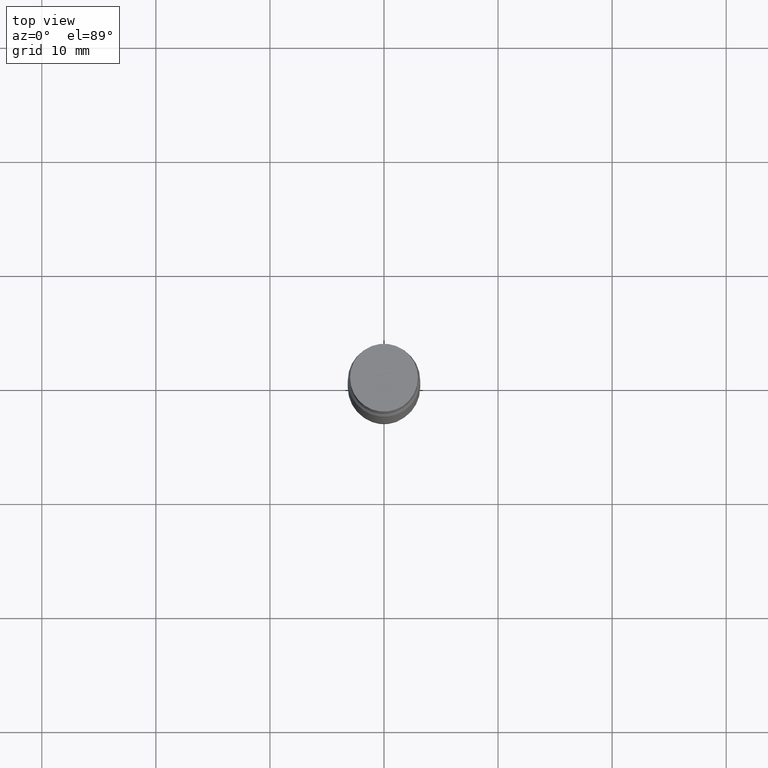
[diagram: clean part render]
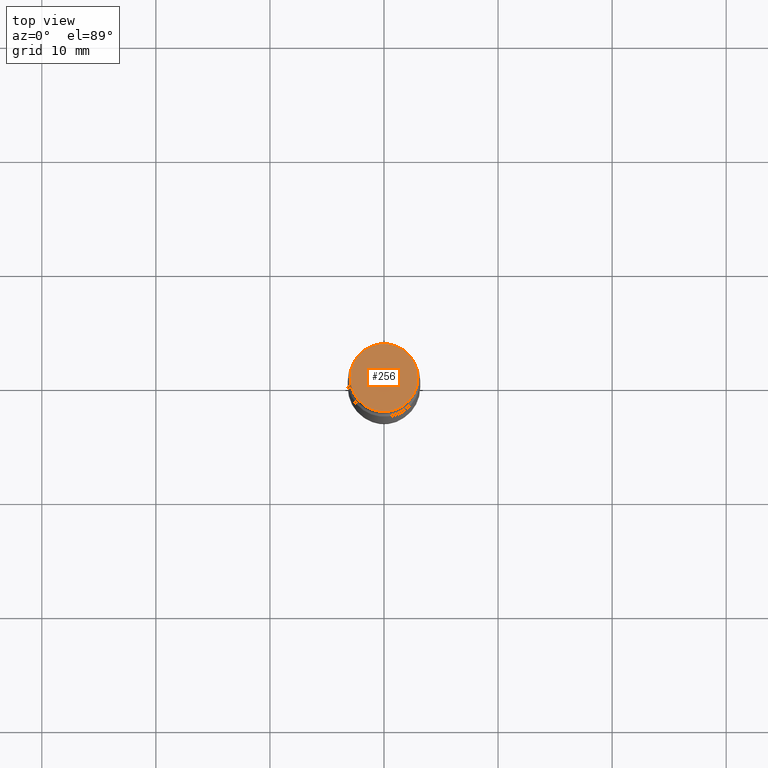
[diagram: same view with one face highlighted and labeled with its STEP entity id]
A machine part, top view. The second image highlights one B-rep face of the part: STEP entity #256.
In plain terms, the highlighted planar face has unit normal (-0, -0, -1).
Its self-contained STEP definition (entity closure, byte-faithful):
#5 = CARTESIAN_POINT ( 'NONE',  ( 6.113672015462842613E-29, 4.046951474745467748E-19, 5.463695987328526437E-16 ) ) ;
#33 = DIRECTION ( 'NONE',  ( -2.438088387897959208E-29, -3.491805094961123683E-15, -1.000000000000000000 ) ) ;
#49 = CARTESIAN_POINT ( 'NONE',  ( 6.154967616791147274E-29, 5.954234664926997746E-17, 5.463695987328526437E-16 ) ) ;
#122 = FACE_OUTER_BOUND ( 'NONE', #659, .T. ) ;
#131 = DIRECTION ( 'NONE',  ( 2.445468806185136597E-29, 3.491805094961124077E-15, 1.000000000000000000 ) ) ;
#135 = DIRECTION ( 'NONE',  ( 1.000000000000000000, -6.982962677686266711E-15, 0.000000000000000000 ) ) ;
#241 = DIRECTION ( 'NONE',  ( 2.445468806185136597E-29, 3.491805094961124077E-15, 1.000000000000000000 ) ) ;
#256 = ADVANCED_FACE ( 'NONE', ( #122 ), #869, .F. ) ;
#315 = CARTESIAN_POINT ( 'NONE',  ( 6.113672015462842613E-29, 4.046951474745467748E-19, 5.463695987328526437E-16 ) ) ;
#391 = ORIENTED_EDGE ( 'NONE', *, *, #863, .T. ) ;
#573 = CIRCLE ( 'NONE', #729, 0.1171999999999999986 ) ;
#602 = CIRCLE ( 'NONE', #796, 0.1171999999999999986 ) ;
#649 = EDGE_CURVE ( 'NONE', #766, #944, #573, .T. ) ;
#659 = EDGE_LOOP ( 'NONE', ( #391, #861 ) ) ;
#663 = CARTESIAN_POINT ( 'NONE',  ( -0.1171999999999999986, -6.849621325398194571E-17, 5.463695987328557991E-16 ) ) ;
#666 = CARTESIAN_POINT ( 'NONE',  ( 0.1171999999999999986, -8.179985306773559567E-16, 5.463695987328526437E-16 ) ) ;
#729 = AXIS2_PLACEMENT_3D ( 'NONE', #5, #241, #842 ) ;
#735 = DIRECTION ( 'NONE',  ( 1.000000000000000000, -6.982962677686265922E-15, 2.260776888683160832E-33 ) ) ;
#766 = VERTEX_POINT ( 'NONE', #663 ) ;
#773 = AXIS2_PLACEMENT_3D ( 'NONE', #49, #33, #735 ) ;
#796 = AXIS2_PLACEMENT_3D ( 'NONE', #315, #131, #135 ) ;
#842 = DIRECTION ( 'NONE',  ( 1.000000000000000000, -6.982962677686266711E-15, 0.000000000000000000 ) ) ;
#861 = ORIENTED_EDGE ( 'NONE', *, *, #649, .T. ) ;
#863 = EDGE_CURVE ( 'NONE', #944, #766, #602, .T. ) ;
#869 = PLANE ( 'NONE',  #773 ) ;
#944 = VERTEX_POINT ( 'NONE', #666 ) ;